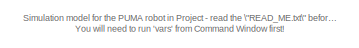
[diagram: root canvas - part 1/3, top right region]
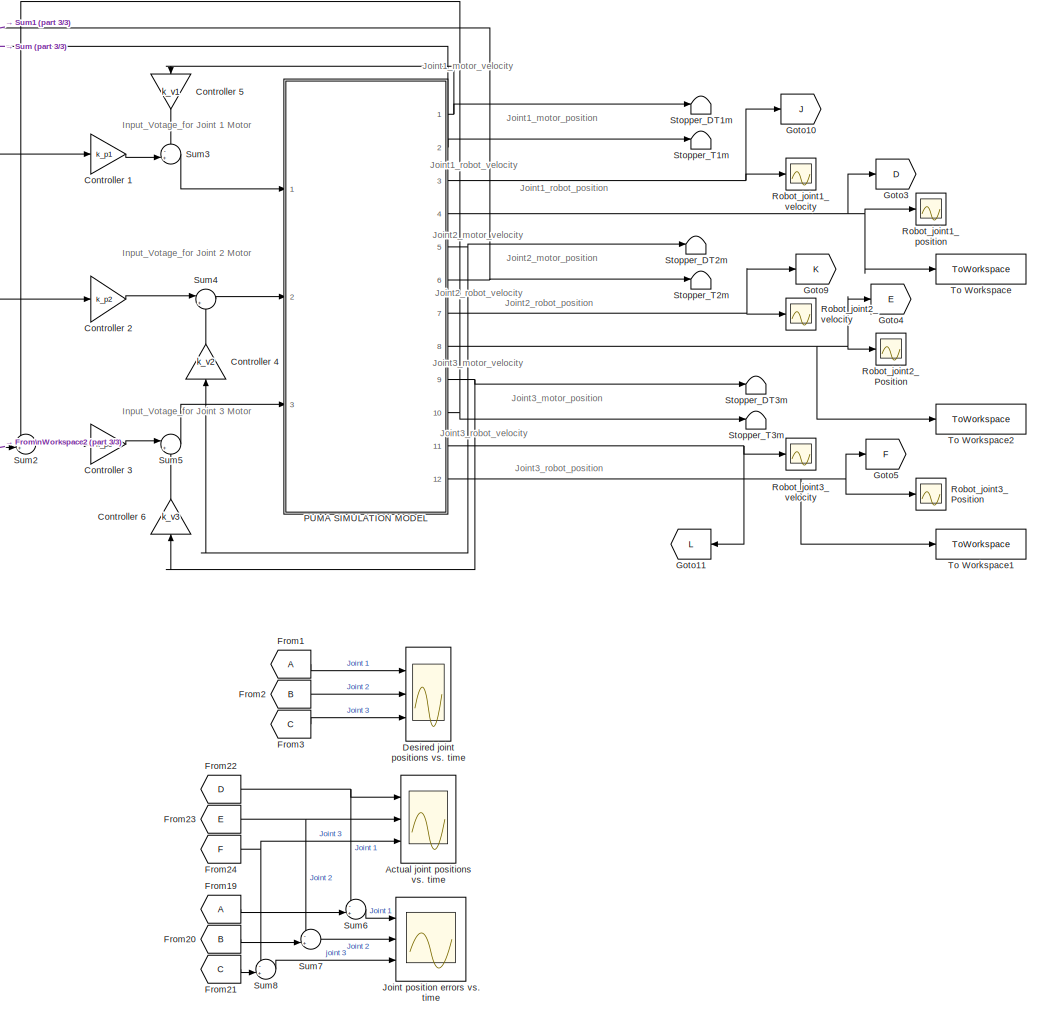
[diagram: root canvas - part 2/3, center side, full height]
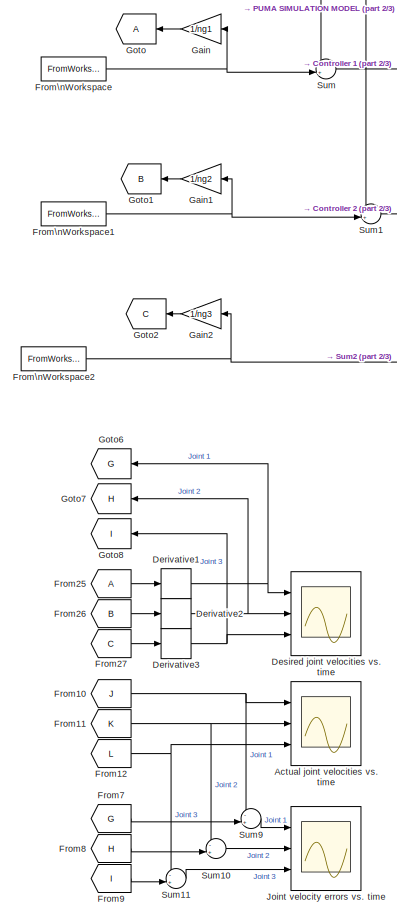
[diagram: root canvas - part 3/3, left side, full height]
MODEL my_PUMA
KIND model
CONFIG StopFcn = run('End_point_graph.m')
BLOCK [Scope] Actual joint positions vs. time 
  Floating = off
  NumInputPorts = 3
  Ports = [3]
  SID = 201
  ScopeSpecificationString = Simulink.scopes.TimeScopeBlockCfg('CurrentConfiguration', extmgr.ConfigurationSet(extmgr.Configuration('Core','General UI',true),extmgr.Configuration('Core','Source UI',true),extmgr.Configuration('Sources','WiredSimulink',true,'DataLoggingVariableName','ScopeData2','DataLoggingSaveFormat','StructureWithTime','DataLoggingDecimation','1','DataLoggingDecimateData',true),extmgr.Configuration('Visuals'...<+2080ch>
BLOCK [Scope] Actual joint velocities vs. time 
  Floating = off
  NumInputPorts = 3
  Ports = [3]
  SID = 249
  ScopeSpecificationString = Simulink.scopes.TimeScopeBlockCfg('CurrentConfiguration', extmgr.ConfigurationSet(extmgr.Configuration('Core','General UI',true,'FigureColor',[1 1 1]),extmgr.Configuration('Core','Source UI',true),extmgr.Configuration('Sources','WiredSimulink',true,'DataLoggingVariableName','ScopeData4','DataLoggingSaveFormat','StructureWithTime','DataLoggingDecimation','1'),extmgr.Configuration('Visuals','Time Do...<+2403ch>
BLOCK [Gain] Controller 1
  Gain = k_p1
  SID = 167
BLOCK [Gain] Controller 2
  Gain = k_p2
  SID = 169
BLOCK [Gain] Controller 3
  Gain = k_p3
  SID = 170
BLOCK [Gain] Controller 4
  Gain = k_v2
  NameLocation = left
  SID = 176
BLOCK [Gain] Controller 5
  Gain = k_v1
  NameLocation = left
  SID = 177
BLOCK [Gain] Controller 6
  Gain = k_v3
  NameLocation = left
  SID = 178
BLOCK [Derivative] Derivative1
  SID = 315
BLOCK [Derivative] Derivative2
  SID = 316
BLOCK [Derivative] Derivative3
  SID = 317
BLOCK [Scope] Desired joint positions vs. time
  Floating = off
  NumInputPorts = 3
  Ports = [3]
  SID = 200
  ScopeSpecificationString = Simulink.scopes.TimeScopeBlockCfg('CurrentConfiguration', extmgr.ConfigurationSet(extmgr.Configuration('Core','General UI',true),extmgr.Configuration('Core','Source UI',true),extmgr.Configuration('Sources','WiredSimulink',true,'DataLoggingVariableName','ScopeData1','DataLoggingSaveFormat','StructureWithTime','DataLoggingDecimation','1'),extmgr.Configuration('Visuals','Time Domain',true,'Serialized...<+2062ch>
BLOCK [Scope] Desired joint velocities vs. time 
  Floating = off
  NumInputPorts = 3
  Ports = [3]
  SID = 253
  ScopeSpecificationString = Simulink.scopes.TimeScopeBlockCfg('CurrentConfiguration', extmgr.ConfigurationSet(extmgr.Configuration('Core','General UI',true),extmgr.Configuration('Core','Source UI',true),extmgr.Configuration('Sources','WiredSimulink',true,'DataLoggingVariableName','ScopeData5','DataLoggingSaveFormat','StructureWithTime','DataLoggingLimitDataPoints',true,'DataLoggingDecimation','1','DataLoggingDecimateData',tr...<+2105ch>
BLOCK [From] From1
  SID = 227
BLOCK [From] From10
  GotoTag = J
  SID = 246
BLOCK [From] From11
  GotoTag = K
  SID = 247
BLOCK [From] From12
  GotoTag = L
  SID = 248
BLOCK [From] From19
  SID = 305
BLOCK [From] From2
  GotoTag = B
  SID = 228
BLOCK [From] From20
  GotoTag = B
  SID = 306
BLOCK [From] From21
  GotoTag = C
  SID = 307
BLOCK [From] From22
  GotoTag = D
  SID = 308
BLOCK [From] From23
  GotoTag = E
  SID = 309
BLOCK [From] From24
  GotoTag = F
  SID = 310
BLOCK [From] From25
  SID = 312
BLOCK [From] From26
  GotoTag = B
  SID = 313
BLOCK [From] From27
  GotoTag = C
  SID = 314
BLOCK [From] From3
  GotoTag = C
  SID = 229
BLOCK [From] From7
  GotoTag = G
  SID = 239
BLOCK [From] From8
  GotoTag = H
  SID = 240
BLOCK [From] From9
  GotoTag = I
  SID = 241
BLOCK [FromWorkspace] From\nWorkspace
  OutputAfterFinalValue = Holding final value
  SID = 194
  SampleTime = -1
  VariableName = Motor1_angles
BLOCK [FromWorkspace] From\nWorkspace1
  OutDataTypeStr = double
  OutputAfterFinalValue = Holding final value
  SID = 195
  SampleTime = -1
  VariableName = Motor2_angles
BLOCK [FromWorkspace] From\nWorkspace2
  OutputAfterFinalValue = Holding final value
  SID = 196
  SampleTime = -1
  VariableName = Motor3_angles
BLOCK [Gain] Gain
  Gain = 1/ng1
  NameLocation = top
  SID = 299
BLOCK [Gain] Gain1
  Gain = 1/ng2
  NameLocation = top
  SID = 300
BLOCK [Gain] Gain2
  Gain = 1/ng3
  NameLocation = top
  SID = 301
BLOCK [Goto] Goto
  SID = 224
BLOCK [Goto] Goto1
  GotoTag = B
  SID = 225
BLOCK [Goto] Goto10
  GotoTag = J
  NameLocation = top
  SID = 243
BLOCK [Goto] Goto11
  GotoTag = L
  SID = 244
BLOCK [Goto] Goto2
  GotoTag = C
  SID = 226
BLOCK [Goto] Goto3
  GotoTag = D
  NameLocation = top
  SID = 231
BLOCK [Goto] Goto4
  GotoTag = E
  NameLocation = top
  SID = 232
BLOCK [Goto] Goto5
  GotoTag = F
  NameLocation = top
  SID = 233
BLOCK [Goto] Goto6
  GotoTag = G
  SID = 236
BLOCK [Goto] Goto7
  GotoTag = H
  SID = 237
BLOCK [Goto] Goto8
  GotoTag = I
  SID = 238
BLOCK [Goto] Goto9
  GotoTag = K
  NameLocation = top
  SID = 242
BLOCK [Scope] Joint position errors vs. time
  Floating = off
  NumInputPorts = 3
  Ports = [3]
  SID = 206
  ScopeSpecificationString = Simulink.scopes.TimeScopeBlockCfg('CurrentConfiguration', extmgr.ConfigurationSet(extmgr.Configuration('Core','General UI',true,'FigureColor',[1 1 1]),extmgr.Configuration('Core','Source UI',true),extmgr.Configuration('Sources','WiredSimulink',true,'DataLoggingVariableName','ScopeData3','DataLoggingSaveFormat','StructureWithTime','DataLoggingDecimation','1'),extmgr.Configuration('Visuals','Time Do...<+2411ch>
BLOCK [Scope] Joint velocity errors vs. time 
  Floating = off
  NumInputPorts = 3
  Ports = [3]
  SID = 260
  ScopeSpecificationString = Simulink.scopes.TimeScopeBlockCfg('CurrentConfiguration', extmgr.ConfigurationSet(extmgr.Configuration('Core','General UI',true,'FigureColor',[1 1 1]),extmgr.Configuration('Core','Source UI',true),extmgr.Configuration('Sources','WiredSimulink',true,'DataLoggingVariableName','ScopeData6','DataLoggingSaveFormat','StructureWithTime','DataLoggingDecimation','1'),extmgr.Configuration('Visuals','Time Do...<+2445ch>
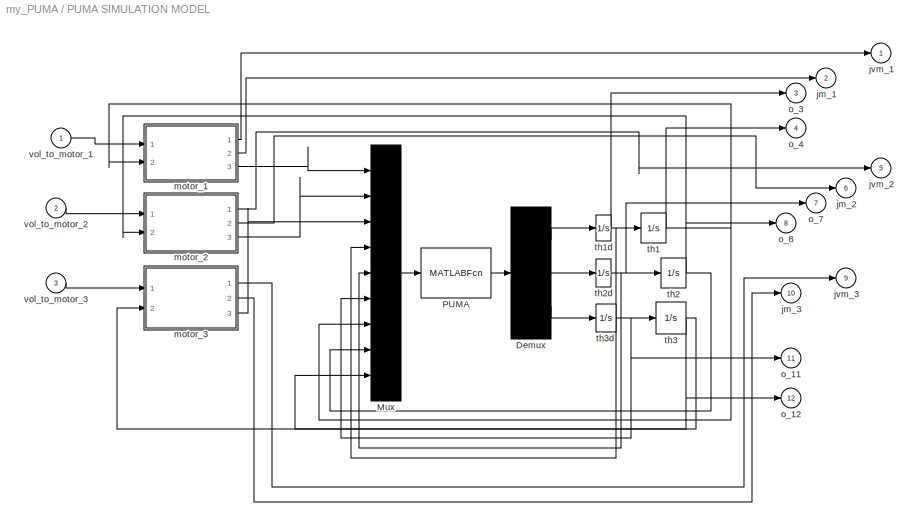
BLOCK [SubSystem] PUMA SIMULATION MODEL
  Ports = [3, 12]
  RequestExecContextInheritance = off
  SID = 1
BLOCK [Demux] PUMA SIMULATION MODEL/Demux
  DisplayOption = none
  Outputs = 3
  Ports = [1, 3]
  SID = 5
BLOCK [Mux] PUMA SIMULATION MODEL/Mux
  Inputs = 9
  Ports = [9, 1]
  SID = 6
BLOCK [MATLABFcn] PUMA SIMULATION MODEL/PUMA
  MATLABFcn = puma
  OutputDimensions = 3
  Ports = [1, 1]
  SID = 7
BLOCK [Outport] PUMA SIMULATION MODEL/jm_1
  InitialOutput = 0
  Port = 2
  SID = 75
  VectorParamsAs1DForOutWhenUnconnected = off
BLOCK [Outport] PUMA SIMULATION MODEL/jm_2
  InitialOutput = 0
  Port = 6
  SID = 79
  VectorParamsAs1DForOutWhenUnconnected = off
BLOCK [Outport] PUMA SIMULATION MODEL/jm_3
  InitialOutput = 0
  Port = 10
  SID = 83
  VectorParamsAs1DForOutWhenUnconnected = off
BLOCK [Outport] PUMA SIMULATION MODEL/jvm_1
  InitialOutput = 0
  SID = 74
  VectorParamsAs1DForOutWhenUnconnected = off
BLOCK [Outport] PUMA SIMULATION MODEL/jvm_2
  InitialOutput = 0
  Port = 5
  SID = 78
  VectorParamsAs1DForOutWhenUnconnected = off
BLOCK [Outport] PUMA SIMULATION MODEL/jvm_3
  InitialOutput = 0
  Port = 9
  SID = 82
  VectorParamsAs1DForOutWhenUnconnected = off
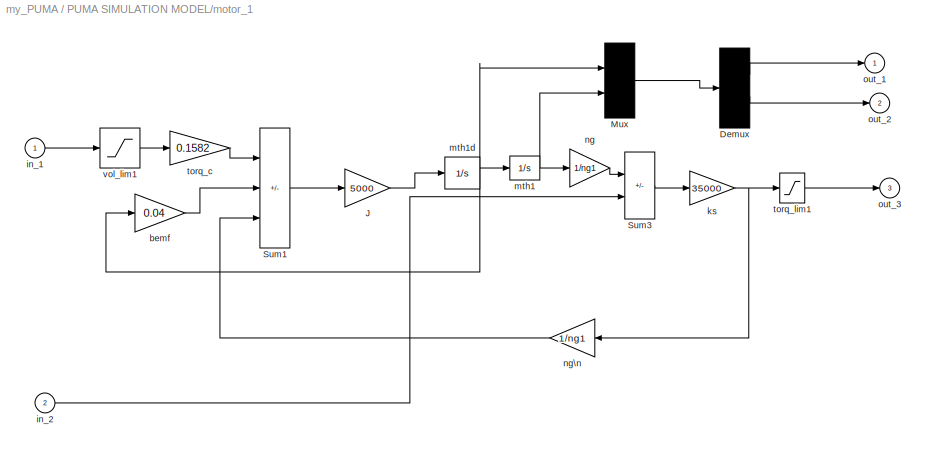
BLOCK [SubSystem] PUMA SIMULATION MODEL/motor_1
  Ports = [2, 3]
  RequestExecContextInheritance = off
  SID = 8
BLOCK [Demux] PUMA SIMULATION MODEL/motor_1/Demux
  DisplayOption = none
  Outputs = 2
  Ports = [1, 2]
  SID = 11
BLOCK [Gain] PUMA SIMULATION MODEL/motor_1/J
  Gain = 5000
  OutDataTypeStr = Inherit: Same as input
  ParamDataTypeStr = Inherit: Same as input
  SID = 12
  SaturateOnIntegerOverflow = on
BLOCK [Mux] PUMA SIMULATION MODEL/motor_1/Mux
  Inputs = 2
  Ports = [2, 1]
  SID = 13
BLOCK [Sum] PUMA SIMULATION MODEL/motor_1/Sum1
  IconShape = rectangular
  InputSameDT = on
  Inputs = +--
  OutDataTypeStr = Inherit: Same as first input
  Ports = [3, 1]
  SID = 14
  SaturateOnIntegerOverflow = on
BLOCK [Sum] PUMA SIMULATION MODEL/motor_1/Sum3
  IconShape = rectangular
  InputSameDT = on
  Inputs = +-
  OutDataTypeStr = Inherit: Same as first input
  Ports = [2, 1]
  SID = 15
  SaturateOnIntegerOverflow = on
BLOCK [Gain] PUMA SIMULATION MODEL/motor_1/bemf
  Gain = 0.04
  OutDataTypeStr = Inherit: Same as input
  ParamDataTypeStr = Inherit: Same as input
  SID = 16
  SaturateOnIntegerOverflow = on
BLOCK [Inport] PUMA SIMULATION MODEL/motor_1/in_1
  SID = 9
BLOCK [Inport] PUMA SIMULATION MODEL/motor_1/in_2
  Port = 2
  SID = 10
BLOCK [Gain] PUMA SIMULATION MODEL/motor_1/ks
  Gain = 35000
  OutDataTypeStr = Inherit: Same as input
  ParamDataTypeStr = Inherit: Same as input
  SID = 17
  SaturateOnIntegerOverflow = on
BLOCK [Integrator] PUMA SIMULATION MODEL/motor_1/mth1
  InitialCondition = ng1*thr10
  Ports = [1, 1]
  SID = 18
BLOCK [Integrator] PUMA SIMULATION MODEL/motor_1/mth1d
  Ports = [1, 1]
  SID = 19
BLOCK [Gain] PUMA SIMULATION MODEL/motor_1/ng
  Gain = 1/ng1
  OutDataTypeStr = Inherit: Same as input
  ParamDataTypeStr = Inherit: Same as input
  SID = 20
  SaturateOnIntegerOverflow = on
BLOCK [Gain] PUMA SIMULATION MODEL/motor_1/ng\n
  Gain = 1/ng1
  OutDataTypeStr = Inherit: Same as input
  ParamDataTypeStr = Inherit: Same as input
  SID = 21
  SaturateOnIntegerOverflow = on
BLOCK [Outport] PUMA SIMULATION MODEL/motor_1/out_1
  InitialOutput = 0
  SID = 25
  VectorParamsAs1DForOutWhenUnconnected = off
BLOCK [Outport] PUMA SIMULATION MODEL/motor_1/out_2
  InitialOutput = 0
  Port = 2
  SID = 26
  VectorParamsAs1DForOutWhenUnconnected = off
BLOCK [Outport] PUMA SIMULATION MODEL/motor_1/out_3
  InitialOutput = 0
  Port = 3
  SID = 27
  VectorParamsAs1DForOutWhenUnconnected = off
BLOCK [Gain] PUMA SIMULATION MODEL/motor_1/torq_c
  Gain = 0.1582
  OutDataTypeStr = Inherit: Same as input
  ParamDataTypeStr = Inherit: Same as input
  SID = 22
  SaturateOnIntegerOverflow = on
BLOCK [Saturate] PUMA SIMULATION MODEL/motor_1/torq_lim1
  LowerLimit = -1.2*ng1
  SID = 23
  UpperLimit = 1.2*ng1
BLOCK [Saturate] PUMA SIMULATION MODEL/motor_1/vol_lim1
  LowerLimit = -40
  SID = 24
  UpperLimit = 40
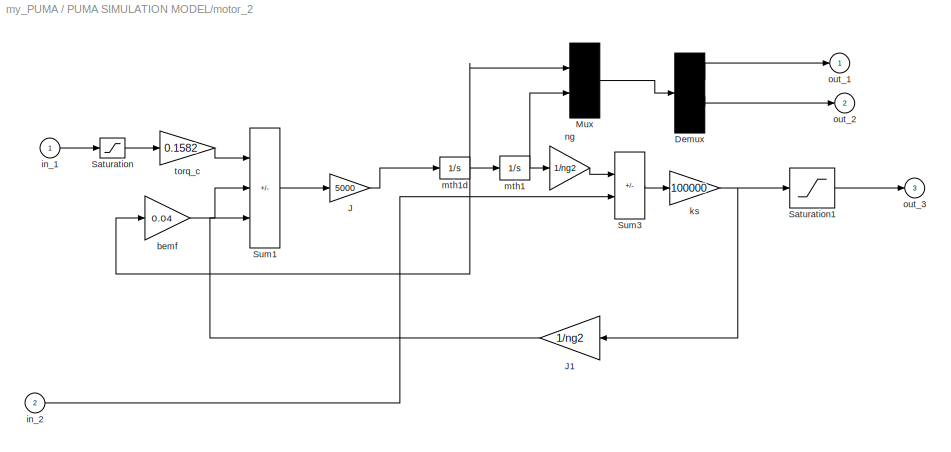
BLOCK [SubSystem] PUMA SIMULATION MODEL/motor_2
  Ports = [2, 3]
  RequestExecContextInheritance = off
  SID = 28
BLOCK [Demux] PUMA SIMULATION MODEL/motor_2/Demux
  DisplayOption = none
  Outputs = 2
  Ports = [1, 2]
  SID = 31
BLOCK [Gain] PUMA SIMULATION MODEL/motor_2/J
  Gain = 5000
  OutDataTypeStr = Inherit: Same as input
  ParamDataTypeStr = Inherit: Same as input
  SID = 32
  SaturateOnIntegerOverflow = on
BLOCK [Gain] PUMA SIMULATION MODEL/motor_2/J1
  Gain = 1/ng2
  OutDataTypeStr = Inherit: Same as input
  ParamDataTypeStr = Inherit: Same as input
  SID = 33
  SaturateOnIntegerOverflow = on
BLOCK [Mux] PUMA SIMULATION MODEL/motor_2/Mux
  Inputs = 2
  Ports = [2, 1]
  SID = 34
BLOCK [Saturate] PUMA SIMULATION MODEL/motor_2/Saturation
  LowerLimit = -40
  SID = 35
  UpperLimit = 40
BLOCK [Saturate] PUMA SIMULATION MODEL/motor_2/Saturation1
  LowerLimit = -ng2*1.2
  SID = 36
  UpperLimit = ng2*1.2
BLOCK [Sum] PUMA SIMULATION MODEL/motor_2/Sum1
  IconShape = rectangular
  InputSameDT = on
  Inputs = +--
  OutDataTypeStr = Inherit: Same as first input
  Ports = [3, 1]
  SID = 37
  SaturateOnIntegerOverflow = on
BLOCK [Sum] PUMA SIMULATION MODEL/motor_2/Sum3
  IconShape = rectangular
  InputSameDT = on
  Inputs = +-
  OutDataTypeStr = Inherit: Same as first input
  Ports = [2, 1]
  SID = 38
  SaturateOnIntegerOverflow = on
BLOCK [Gain] PUMA SIMULATION MODEL/motor_2/bemf
  Gain = 0.04
  OutDataTypeStr = Inherit: Same as input
  ParamDataTypeStr = Inherit: Same as input
  SID = 39
  SaturateOnIntegerOverflow = on
BLOCK [Inport] PUMA SIMULATION MODEL/motor_2/in_1
  SID = 29
BLOCK [Inport] PUMA SIMULATION MODEL/motor_2/in_2
  Port = 2
  SID = 30
BLOCK [Gain] PUMA SIMULATION MODEL/motor_2/ks
  Gain = 100000
  OutDataTypeStr = Inherit: Same as input
  ParamDataTypeStr = Inherit: Same as input
  SID = 40
  SaturateOnIntegerOverflow = on
BLOCK [Integrator] PUMA SIMULATION MODEL/motor_2/mth1
  InitialCondition = thr20*ng2
  Ports = [1, 1]
  SID = 41
BLOCK [Integrator] PUMA SIMULATION MODEL/motor_2/mth1d
  Ports = [1, 1]
  SID = 42
BLOCK [Gain] PUMA SIMULATION MODEL/motor_2/ng
  Gain = 1/ng2
  OutDataTypeStr = Inherit: Same as input
  ParamDataTypeStr = Inherit: Same as input
  SID = 43
  SaturateOnIntegerOverflow = on
BLOCK [Outport] PUMA SIMULATION MODEL/motor_2/out_1
  InitialOutput = 0
  SID = 45
  VectorParamsAs1DForOutWhenUnconnected = off
BLOCK [Outport] PUMA SIMULATION MODEL/motor_2/out_2
  InitialOutput = 0
  Port = 2
  SID = 46
  VectorParamsAs1DForOutWhenUnconnected = off
BLOCK [Outport] PUMA SIMULATION MODEL/motor_2/out_3
  InitialOutput = 0
  Port = 3
  SID = 47
  VectorParamsAs1DForOutWhenUnconnected = off
BLOCK [Gain] PUMA SIMULATION MODEL/motor_2/torq_c
  Gain = 0.1582
  OutDataTypeStr = Inherit: Same as input
  ParamDataTypeStr = Inherit: Same as input
  SID = 44
  SaturateOnIntegerOverflow = on
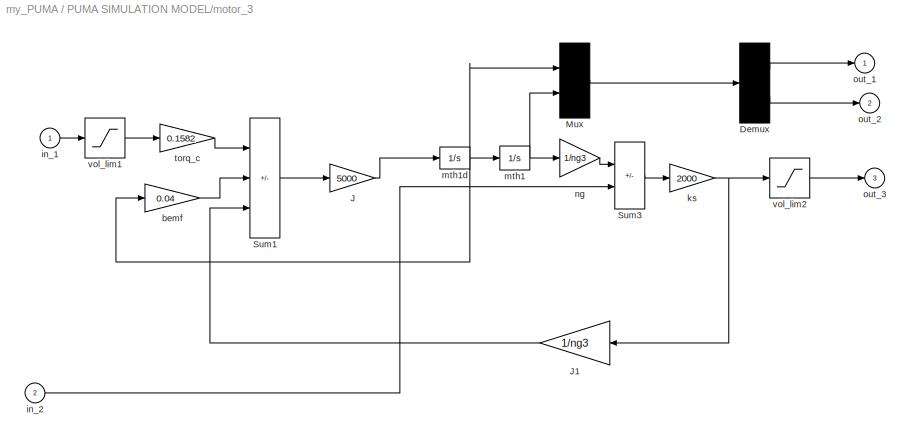
BLOCK [SubSystem] PUMA SIMULATION MODEL/motor_3
  Ports = [2, 3]
  RequestExecContextInheritance = off
  SID = 48
BLOCK [Demux] PUMA SIMULATION MODEL/motor_3/Demux
  DisplayOption = none
  Outputs = 2
  Ports = [1, 2]
  SID = 51
BLOCK [Gain] PUMA SIMULATION MODEL/motor_3/J
  Gain = 5000
  OutDataTypeStr = Inherit: Same as input
  ParamDataTypeStr = Inherit: Same as input
  SID = 52
  SaturateOnIntegerOverflow = on
BLOCK [Gain] PUMA SIMULATION MODEL/motor_3/J1
  Gain = 1/ng3
  OutDataTypeStr = Inherit: Same as input
  ParamDataTypeStr = Inherit: Same as input
  SID = 53
  SaturateOnIntegerOverflow = on
BLOCK [Mux] PUMA SIMULATION MODEL/motor_3/Mux
  Inputs = 2
  Ports = [2, 1]
  SID = 54
BLOCK [Sum] PUMA SIMULATION MODEL/motor_3/Sum1
  IconShape = rectangular
  InputSameDT = on
  Inputs = +--
  OutDataTypeStr = Inherit: Same as first input
  Ports = [3, 1]
  SID = 55
  SaturateOnIntegerOverflow = on
BLOCK [Sum] PUMA SIMULATION MODEL/motor_3/Sum3
  IconShape = rectangular
  InputSameDT = on
  Inputs = +-
  OutDataTypeStr = Inherit: Same as first input
  Ports = [2, 1]
  SID = 56
  SaturateOnIntegerOverflow = on
BLOCK [Gain] PUMA SIMULATION MODEL/motor_3/bemf
  Gain = 0.04
  OutDataTypeStr = Inherit: Same as input
  ParamDataTypeStr = Inherit: Same as input
  SID = 57
  SaturateOnIntegerOverflow = on
BLOCK [Inport] PUMA SIMULATION MODEL/motor_3/in_1
  SID = 49
BLOCK [Inport] PUMA SIMULATION MODEL/motor_3/in_2
  Port = 2
  SID = 50
BLOCK [Gain] PUMA SIMULATION MODEL/motor_3/ks
  Gain = 2000
  OutDataTypeStr = Inherit: Same as input
  ParamDataTypeStr = Inherit: Same as input
  SID = 58
  SaturateOnIntegerOverflow = on
BLOCK [Integrator] PUMA SIMULATION MODEL/motor_3/mth1
  InitialCondition = thr30*ng3
  Ports = [1, 1]
  SID = 59
BLOCK [Integrator] PUMA SIMULATION MODEL/motor_3/mth1d
  Ports = [1, 1]
  SID = 60
BLOCK [Gain] PUMA SIMULATION MODEL/motor_3/ng
  Gain = 1/ng3
  OutDataTypeStr = Inherit: Same as input
  ParamDataTypeStr = Inherit: Same as input
  SID = 61
  SaturateOnIntegerOverflow = on
BLOCK [Outport] PUMA SIMULATION MODEL/motor_3/out_1
  InitialOutput = 0
  SID = 65
  VectorParamsAs1DForOutWhenUnconnected = off
BLOCK [Outport] PUMA SIMULATION MODEL/motor_3/out_2
  InitialOutput = 0
  Port = 2
  SID = 66
  VectorParamsAs1DForOutWhenUnconnected = off
BLOCK [Outport] PUMA SIMULATION MODEL/motor_3/out_3
  InitialOutput = 0
  Port = 3
  SID = 67
  VectorParamsAs1DForOutWhenUnconnected = off
BLOCK [Gain] PUMA SIMULATION MODEL/motor_3/torq_c
  Gain = 0.1582
  OutDataTypeStr = Inherit: Same as input
  ParamDataTypeStr = Inherit: Same as input
  SID = 62
  SaturateOnIntegerOverflow = on
BLOCK [Saturate] PUMA SIMULATION MODEL/motor_3/vol_lim1
  LowerLimit = -40
  SID = 63
  UpperLimit = 40
BLOCK [Saturate] PUMA SIMULATION MODEL/motor_3/vol_lim2
  LowerLimit = -1.2*ng3
  SID = 64
  UpperLimit = 1.2*ng3
BLOCK [Outport] PUMA SIMULATION MODEL/o_11
  InitialOutput = 0
  Port = 11
  SID = 84
  VectorParamsAs1DForOutWhenUnconnected = off
BLOCK [Outport] PUMA SIMULATION MODEL/o_12
  InitialOutput = 0
  Port = 12
  SID = 85
  VectorParamsAs1DForOutWhenUnconnected = off
BLOCK [Outport] PUMA SIMULATION MODEL/o_3
  InitialOutput = 0
  Port = 3
  SID = 76
  VectorParamsAs1DForOutWhenUnconnected = off
BLOCK [Outport] PUMA SIMULATION MODEL/o_4
  InitialOutput = 0
  Port = 4
  SID = 77
  VectorParamsAs1DForOutWhenUnconnected = off
BLOCK [Outport] PUMA SIMULATION MODEL/o_7
  InitialOutput = 0
  Port = 7
  SID = 80
  VectorParamsAs1DForOutWhenUnconnected = off
BLOCK [Outport] PUMA SIMULATION MODEL/o_8
  InitialOutput = 0
  Port = 8
  SID = 81
  VectorParamsAs1DForOutWhenUnconnected = off
BLOCK [Integrator] PUMA SIMULATION MODEL/th1
  InitialCondition = thr10
  Ports = [1, 1]
  SID = 68
BLOCK [Integrator] PUMA SIMULATION MODEL/th1d
  Ports = [1, 1]
  SID = 69
BLOCK [Integrator] PUMA SIMULATION MODEL/th2
  InitialCondition = thr20
  Ports = [1, 1]
  SID = 70
BLOCK [Integrator] PUMA SIMULATION MODEL/th2d
  Ports = [1, 1]
  SID = 71
BLOCK [Integrator] PUMA SIMULATION MODEL/th3
  InitialCondition = thr30
  Ports = [1, 1]
  SID = 72
BLOCK [Integrator] PUMA SIMULATION MODEL/th3d
  Ports = [1, 1]
  SID = 73
BLOCK [Inport] PUMA SIMULATION MODEL/vol_to_motor_1
  SID = 2
BLOCK [Inport] PUMA SIMULATION MODEL/vol_to_motor_2
  Port = 2
  SID = 3
BLOCK [Inport] PUMA SIMULATION MODEL/vol_to_motor_3
  Port = 3
  SID = 4
BLOCK [Scope] Robot_joint1_position
  Floating = off
  NumInputPorts = 1
  Ports = [1]
  SID = 147
  ScopeSpecificationString = Simulink.scopes.TimeScopeBlockCfg('CurrentConfiguration', extmgr.ConfigurationSet(extmgr.Configuration('Core','General UI',true),extmgr.Configuration('Core','Source UI',true),extmgr.Configuration('Sources','WiredSimulink',true,'DataLoggingVariableName','ScopeData1','DataLoggingSaveFormat','StructureWithTime','DataLoggingLimitDataPoints',true,'DataLoggingDecimation','1','DataLoggingDecimateData',tr...<+2017ch>
BLOCK [Scope] Robot_joint1_velocity
  Floating = off
  NumInputPorts = 1
  Ports = [1]
  SID = 146
  ScopeSpecificationString = Simulink.scopes.TimeScopeBlockCfg('CurrentConfiguration', extmgr.ConfigurationSet(extmgr.Configuration('Core','General UI',true),extmgr.Configuration('Core','Source UI',true),extmgr.Configuration('Sources','WiredSimulink',true,'DataLoggingSaveFormat','StructureWithTime','DataLoggingLimitDataPoints',true,'DataLoggingDecimation','1','DataLoggingDecimateData',true),extmgr.Configuration('Visuals','Tim...<+1724ch>
BLOCK [Scope] Robot_joint2_Position
  Floating = off
  NumInputPorts = 1
  Ports = [1]
  SID = 165
  ScopeSpecificationString = Simulink.scopes.TimeScopeBlockCfg('CurrentConfiguration', extmgr.ConfigurationSet(extmgr.Configuration('Core','General UI',true),extmgr.Configuration('Core','Source UI',true),extmgr.Configuration('Sources','WiredSimulink',true,'DataLoggingVariableName','ScopeData6','DataLoggingSaveFormat','StructureWithTime','DataLoggingLimitDataPoints',true,'DataLoggingDecimation','1','DataLoggingDecimateData',tr...<+2049ch>
BLOCK [Scope] Robot_joint2_velocity
  Floating = off
  NumInputPorts = 1
  Ports = [1]
  SID = 164
  ScopeSpecificationString = Simulink.scopes.TimeScopeBlockCfg('CurrentConfiguration', extmgr.ConfigurationSet(extmgr.Configuration('Core','General UI',true),extmgr.Configuration('Core','Source UI',true),extmgr.Configuration('Sources','WiredSimulink',true,'DataLoggingVariableName','ScopeData3','DataLoggingSaveFormat','StructureWithTime','DataLoggingLimitDataPoints',true,'DataLoggingDecimation','1','DataLoggingDecimateData',tr...<+1765ch>
BLOCK [Scope] Robot_joint3_Position
  Floating = off
  NumInputPorts = 1
  Ports = [1]
  SID = 150
  ScopeSpecificationString = Simulink.scopes.TimeScopeBlockCfg('CurrentConfiguration', extmgr.ConfigurationSet(extmgr.Configuration('Core','General UI',true),extmgr.Configuration('Core','Source UI',true),extmgr.Configuration('Sources','WiredSimulink',true,'DataLoggingVariableName','ScopeData5','DataLoggingSaveFormat','StructureWithTime','DataLoggingDecimation','1'),extmgr.Configuration('Visuals','Time Domain',true,'Serialized...<+1928ch>
BLOCK [Scope] Robot_joint3_velocity
  Floating = off
  NumInputPorts = 1
  Ports = [1]
  SID = 149
  ScopeSpecificationString = Simulink.scopes.TimeScopeBlockCfg('CurrentConfiguration', extmgr.ConfigurationSet(extmgr.Configuration('Core','General UI',true),extmgr.Configuration('Core','Source UI',true),extmgr.Configuration('Sources','WiredSimulink',true,'DataLoggingVariableName','ScopeData4','DataLoggingSaveFormat','StructureWithTime','DataLoggingLimitDataPoints',true,'DataLoggingDecimation','1','DataLoggingDecimateData',tr...<+1766ch>
BLOCK [Terminator] Stopper_DT1m
  SID = 123
BLOCK [Terminator] Stopper_DT2m
  SID = 125
BLOCK [Terminator] Stopper_DT3m
  SID = 127
BLOCK [Terminator] Stopper_T1m
  SID = 124
BLOCK [Terminator] Stopper_T2m
  SID = 145
BLOCK [Terminator] Stopper_T3m
  SID = 128
BLOCK [Sum] Sum
  Inputs = -+|
  Ports = [2, 1]
  SID = 166
BLOCK [Sum] Sum1
  Inputs = -+|
  Ports = [2, 1]
  SID = 168
BLOCK [Sum] Sum10
  Inputs = -+|
  Ports = [2, 1]
  SID = 319
BLOCK [Sum] Sum11
  Inputs = -+|
  Ports = [2, 1]
  SID = 320
BLOCK [Sum] Sum2
  Inputs = -+|
  Ports = [2, 1]
  SID = 171
BLOCK [Sum] Sum3
  Inputs = -+|
  Ports = [2, 1]
  SID = 173
BLOCK [Sum] Sum4
  Inputs = |+-
  Ports = [2, 1]
  SID = 174
BLOCK [Sum] Sum5
  Inputs = |+-
  Ports = [2, 1]
  SID = 175
BLOCK [Sum] Sum6
  Inputs = -+|
  Ports = [2, 1]
  SID = 302
BLOCK [Sum] Sum7
  Inputs = -+|
  Ports = [2, 1]
  SID = 303
BLOCK [Sum] Sum8
  Inputs = -+|
  Ports = [2, 1]
  SID = 304
BLOCK [Sum] Sum9
  Inputs = -+|
  Ports = [2, 1]
  SID = 318
BLOCK [ToWorkspace] To Workspace
  FixptAsFi = on
  MaxDataPoints = inf
  Ports = [1]
  SID = 292
  SampleTime = -1
  VariableName = ang1
BLOCK [ToWorkspace] To Workspace1
  FixptAsFi = on
  MaxDataPoints = inf
  Ports = [1]
  SID = 295
  SampleTime = -1
  VariableName = ang3
BLOCK [ToWorkspace] To Workspace2
  FixptAsFi = on
  MaxDataPoints = inf
  Ports = [1]
  SID = 296
  SampleTime = -1
  VariableName = ang2
ANNOTATION (root): Input_Votage_for Joint 1 Motor
ANNOTATION (root): Input_Votage_for Joint 2 Motor
ANNOTATION (root): Input_Votage_for Joint 3 Motor
ANNOTATION (root): Joint1_motor_position
ANNOTATION (root): Joint1_motor_velocity
ANNOTATION (root): Joint1_robot_position
ANNOTATION (root): Joint1_robot_velocity
ANNOTATION (root): Joint2_motor_position
ANNOTATION (root): Joint2_motor_velocity
ANNOTATION (root): Joint2_robot_position
ANNOTATION (root): Joint2_robot_velocity
ANNOTATION (root): Joint3_motor_position
ANNOTATION (root): Joint3_motor_velocity
ANNOTATION (root): Joint3_robot_position
ANNOTATION (root): Joint3_robot_velocity
ANNOTATION (root): Simulation model for the PUMA robot in Project - read the \"READ_ME.txt\" before running this simulation\nYou will need to run 'vars' from Command Window first!
LINE Controller 1:1 -> Sum3:2
LINE Controller 2:1 -> Sum4:1
LINE Controller 3:1 -> Sum5:1
LINE Controller 4:1 -> Sum4:2
LINE Controller 5:1 -> Sum3:1
LINE Controller 6:1 -> Sum5:2
NET Derivative1:1 -> Desired joint velocities vs. time :1, Goto6:1
NET Derivative2:1 -> Desired joint velocities vs. time :2, Goto7:1
NET Derivative3:1 -> Desired joint velocities vs. time :3, Goto8:1
NET From10:1 -> Actual joint velocities vs. time :1, Sum9:1
NET From11:1 -> Actual joint velocities vs. time :2, Sum10:1
NET From12:1 -> Actual joint velocities vs. time :3, Sum11:1
LINE From19:1 -> Sum6:2
LINE From1:1 -> Desired joint positions vs. time:1
LINE From20:1 -> Sum7:2
LINE From21:1 -> Sum8:2
NET From22:1 -> Actual joint positions vs. time :1, Sum6:1
NET From23:1 -> Actual joint positions vs. time :2, Sum7:1
NET From24:1 -> Actual joint positions vs. time :3, Sum8:1
LINE From25:1 -> Derivative1:1
LINE From26:1 -> Derivative2:1
LINE From27:1 -> Derivative3:1
LINE From2:1 -> Desired joint positions vs. time:2
LINE From3:1 -> Desired joint positions vs. time:3
LINE From7:1 -> Sum9:2
LINE From8:1 -> Sum10:2
LINE From9:1 -> Sum11:2
NET From\nWorkspace1:1 -> Gain1:1, Sum1:2
NET From\nWorkspace2:1 -> Gain2:1, Sum2:2
NET From\nWorkspace:1 -> Gain:1, Sum:2
LINE Gain1:1 -> Goto1:1
LINE Gain2:1 -> Goto2:1
LINE Gain:1 -> Goto:1
LINE PUMA SIMULATION MODEL/Demux:1 -> PUMA SIMULATION MODEL/th1d:1
LINE PUMA SIMULATION MODEL/Demux:2 -> PUMA SIMULATION MODEL/th2d:1
LINE PUMA SIMULATION MODEL/Demux:3 -> PUMA SIMULATION MODEL/th3d:1
LINE PUMA SIMULATION MODEL/Mux:1 -> PUMA SIMULATION MODEL/PUMA:1
LINE PUMA SIMULATION MODEL/PUMA:1 -> PUMA SIMULATION MODEL/Demux:1
LINE PUMA SIMULATION MODEL/motor_1/Demux:1 -> PUMA SIMULATION MODEL/motor_1/out_1:1
LINE PUMA SIMULATION MODEL/motor_1/Demux:2 -> PUMA SIMULATION MODEL/motor_1/out_2:1
LINE PUMA SIMULATION MODEL/motor_1/J:1 -> PUMA SIMULATION MODEL/motor_1/mth1d:1
LINE PUMA SIMULATION MODEL/motor_1/Mux:1 -> PUMA SIMULATION MODEL/motor_1/Demux:1
LINE PUMA SIMULATION MODEL/motor_1/Sum1:1 -> PUMA SIMULATION MODEL/motor_1/J:1
LINE PUMA SIMULATION MODEL/motor_1/Sum3:1 -> PUMA SIMULATION MODEL/motor_1/ks:1
LINE PUMA SIMULATION MODEL/motor_1/bemf:1 -> PUMA SIMULATION MODEL/motor_1/Sum1:2
LINE PUMA SIMULATION MODEL/motor_1/in_1:1 -> PUMA SIMULATION MODEL/motor_1/vol_lim1:1
LINE PUMA SIMULATION MODEL/motor_1/in_2:1 -> PUMA SIMULATION MODEL/motor_1/Sum3:2
NET PUMA SIMULATION MODEL/motor_1/ks:1 -> PUMA SIMULATION MODEL/motor_1/ng\n:1, PUMA SIMULATION MODEL/motor_1/torq_lim1:1
NET PUMA SIMULATION MODEL/motor_1/mth1:1 -> PUMA SIMULATION MODEL/motor_1/Mux:2, PUMA SIMULATION MODEL/motor_1/ng:1
NET PUMA SIMULATION MODEL/motor_1/mth1d:1 -> PUMA SIMULATION MODEL/motor_1/Mux:1, PUMA SIMULATION MODEL/motor_1/bemf:1, PUMA SIMULATION MODEL/motor_1/mth1:1
LINE PUMA SIMULATION MODEL/motor_1/ng:1 -> PUMA SIMULATION MODEL/motor_1/Sum3:1
LINE PUMA SIMULATION MODEL/motor_1/ng\n:1 -> PUMA SIMULATION MODEL/motor_1/Sum1:3
LINE PUMA SIMULATION MODEL/motor_1/torq_c:1 -> PUMA SIMULATION MODEL/motor_1/Sum1:1
LINE PUMA SIMULATION MODEL/motor_1/torq_lim1:1 -> PUMA SIMULATION MODEL/motor_1/out_3:1
LINE PUMA SIMULATION MODEL/motor_1/vol_lim1:1 -> PUMA SIMULATION MODEL/motor_1/torq_c:1
LINE PUMA SIMULATION MODEL/motor_1:1 -> PUMA SIMULATION MODEL/jvm_1:1
LINE PUMA SIMULATION MODEL/motor_1:2 -> PUMA SIMULATION MODEL/jm_1:1
LINE PUMA SIMULATION MODEL/motor_1:3 -> PUMA SIMULATION MODEL/Mux:1
LINE PUMA SIMULATION MODEL/motor_2/Demux:1 -> PUMA SIMULATION MODEL/motor_2/out_1:1
LINE PUMA SIMULATION MODEL/motor_2/Demux:2 -> PUMA SIMULATION MODEL/motor_2/out_2:1
LINE PUMA SIMULATION MODEL/motor_2/J1:1 -> PUMA SIMULATION MODEL/motor_2/Sum1:3
LINE PUMA SIMULATION MODEL/motor_2/J:1 -> PUMA SIMULATION MODEL/motor_2/mth1d:1
LINE PUMA SIMULATION MODEL/motor_2/Mux:1 -> PUMA SIMULATION MODEL/motor_2/Demux:1
LINE PUMA SIMULATION MODEL/motor_2/Saturation1:1 -> PUMA SIMULATION MODEL/motor_2/out_3:1
LINE PUMA SIMULATION MODEL/motor_2/Saturation:1 -> PUMA SIMULATION MODEL/motor_2/torq_c:1
LINE PUMA SIMULATION MODEL/motor_2/Sum1:1 -> PUMA SIMULATION MODEL/motor_2/J:1
LINE PUMA SIMULATION MODEL/motor_2/Sum3:1 -> PUMA SIMULATION MODEL/motor_2/ks:1
LINE PUMA SIMULATION MODEL/motor_2/bemf:1 -> PUMA SIMULATION MODEL/motor_2/Sum1:2
LINE PUMA SIMULATION MODEL/motor_2/in_1:1 -> PUMA SIMULATION MODEL/motor_2/Saturation:1
LINE PUMA SIMULATION MODEL/motor_2/in_2:1 -> PUMA SIMULATION MODEL/motor_2/Sum3:2
NET PUMA SIMULATION MODEL/motor_2/ks:1 -> PUMA SIMULATION MODEL/motor_2/J1:1, PUMA SIMULATION MODEL/motor_2/Saturation1:1
NET PUMA SIMULATION MODEL/motor_2/mth1:1 -> PUMA SIMULATION MODEL/motor_2/Mux:2, PUMA SIMULATION MODEL/motor_2/ng:1
NET PUMA SIMULATION MODEL/motor_2/mth1d:1 -> PUMA SIMULATION MODEL/motor_2/Mux:1, PUMA SIMULATION MODEL/motor_2/bemf:1, PUMA SIMULATION MODEL/motor_2/mth1:1
LINE PUMA SIMULATION MODEL/motor_2/ng:1 -> PUMA SIMULATION MODEL/motor_2/Sum3:1
LINE PUMA SIMULATION MODEL/motor_2/torq_c:1 -> PUMA SIMULATION MODEL/motor_2/Sum1:1
LINE PUMA SIMULATION MODEL/motor_2:1 -> PUMA SIMULATION MODEL/jvm_2:1
LINE PUMA SIMULATION MODEL/motor_2:2 -> PUMA SIMULATION MODEL/jm_2:1
LINE PUMA SIMULATION MODEL/motor_2:3 -> PUMA SIMULATION MODEL/Mux:2
LINE PUMA SIMULATION MODEL/motor_3/Demux:1 -> PUMA SIMULATION MODEL/motor_3/out_1:1
LINE PUMA SIMULATION MODEL/motor_3/Demux:2 -> PUMA SIMULATION MODEL/motor_3/out_2:1
LINE PUMA SIMULATION MODEL/motor_3/J1:1 -> PUMA SIMULATION MODEL/motor_3/Sum1:3
LINE PUMA SIMULATION MODEL/motor_3/J:1 -> PUMA SIMULATION MODEL/motor_3/mth1d:1
LINE PUMA SIMULATION MODEL/motor_3/Mux:1 -> PUMA SIMULATION MODEL/motor_3/Demux:1
LINE PUMA SIMULATION MODEL/motor_3/Sum1:1 -> PUMA SIMULATION MODEL/motor_3/J:1
LINE PUMA SIMULATION MODEL/motor_3/Sum3:1 -> PUMA SIMULATION MODEL/motor_3/ks:1
LINE PUMA SIMULATION MODEL/motor_3/bemf:1 -> PUMA SIMULATION MODEL/motor_3/Sum1:2
LINE PUMA SIMULATION MODEL/motor_3/in_1:1 -> PUMA SIMULATION MODEL/motor_3/vol_lim1:1
LINE PUMA SIMULATION MODEL/motor_3/in_2:1 -> PUMA SIMULATION MODEL/motor_3/Sum3:2
NET PUMA SIMULATION MODEL/motor_3/ks:1 -> PUMA SIMULATION MODEL/motor_3/J1:1, PUMA SIMULATION MODEL/motor_3/vol_lim2:1
NET PUMA SIMULATION MODEL/motor_3/mth1:1 -> PUMA SIMULATION MODEL/motor_3/Mux:2, PUMA SIMULATION MODEL/motor_3/ng:1
NET PUMA SIMULATION MODEL/motor_3/mth1d:1 -> PUMA SIMULATION MODEL/motor_3/Mux:1, PUMA SIMULATION MODEL/motor_3/bemf:1, PUMA SIMULATION MODEL/motor_3/mth1:1
LINE PUMA SIMULATION MODEL/motor_3/ng:1 -> PUMA SIMULATION MODEL/motor_3/Sum3:1
LINE PUMA SIMULATION MODEL/motor_3/torq_c:1 -> PUMA SIMULATION MODEL/motor_3/Sum1:1
LINE PUMA SIMULATION MODEL/motor_3/vol_lim1:1 -> PUMA SIMULATION MODEL/motor_3/torq_c:1
LINE PUMA SIMULATION MODEL/motor_3/vol_lim2:1 -> PUMA SIMULATION MODEL/motor_3/out_3:1
LINE PUMA SIMULATION MODEL/motor_3:1 -> PUMA SIMULATION MODEL/jvm_3:1
LINE PUMA SIMULATION MODEL/motor_3:2 -> PUMA SIMULATION MODEL/jm_3:1
LINE PUMA SIMULATION MODEL/motor_3:3 -> PUMA SIMULATION MODEL/Mux:3
NET PUMA SIMULATION MODEL/th1:1 -> PUMA SIMULATION MODEL/Mux:7, PUMA SIMULATION MODEL/motor_1:2, PUMA SIMULATION MODEL/o_4:1
NET PUMA SIMULATION MODEL/th1d:1 -> PUMA SIMULATION MODEL/Mux:4, PUMA SIMULATION MODEL/o_3:1, PUMA SIMULATION MODEL/th1:1
NET PUMA SIMULATION MODEL/th2:1 -> PUMA SIMULATION MODEL/Mux:8, PUMA SIMULATION MODEL/motor_2:2, PUMA SIMULATION MODEL/o_8:1
NET PUMA SIMULATION MODEL/th2d:1 -> PUMA SIMULATION MODEL/Mux:5, PUMA SIMULATION MODEL/o_7:1, PUMA SIMULATION MODEL/th2:1
NET PUMA SIMULATION MODEL/th3:1 -> PUMA SIMULATION MODEL/Mux:9, PUMA SIMULATION MODEL/motor_3:2, PUMA SIMULATION MODEL/o_12:1
NET PUMA SIMULATION MODEL/th3d:1 -> PUMA SIMULATION MODEL/Mux:6, PUMA SIMULATION MODEL/o_11:1, PUMA SIMULATION MODEL/th3:1
LINE PUMA SIMULATION MODEL/vol_to_motor_1:1 -> PUMA SIMULATION MODEL/motor_1:1
LINE PUMA SIMULATION MODEL/vol_to_motor_2:1 -> PUMA SIMULATION MODEL/motor_2:1
LINE PUMA SIMULATION MODEL/vol_to_motor_3:1 -> PUMA SIMULATION MODEL/motor_3:1
NET PUMA SIMULATION MODEL:1 -> Controller 5:1, Stopper_DT1m:1
NET PUMA SIMULATION MODEL:10 -> Stopper_T3m:1, Sum2:1
NET PUMA SIMULATION MODEL:11 -> Goto11:1, Robot_joint3_velocity:1
NET PUMA SIMULATION MODEL:12 -> Goto5:1, Robot_joint3_Position:1, To Workspace1:1
NET PUMA SIMULATION MODEL:2 -> Stopper_T1m:1, Sum:1
NET PUMA SIMULATION MODEL:3 -> Goto10:1, Robot_joint1_velocity:1
NET PUMA SIMULATION MODEL:4 -> Goto3:1, Robot_joint1_position:1, To Workspace:1
NET PUMA SIMULATION MODEL:5 -> Controller 4:1, Stopper_DT2m:1
NET PUMA SIMULATION MODEL:6 -> Stopper_T2m:1, Sum1:1
NET PUMA SIMULATION MODEL:7 -> Goto9:1, Robot_joint2_velocity:1
NET PUMA SIMULATION MODEL:8 -> Goto4:1, Robot_joint2_Position:1, To Workspace2:1
NET PUMA SIMULATION MODEL:9 -> Controller 6:1, Stopper_DT3m:1
LINE Sum10:1 -> Joint velocity errors vs. time :2
LINE Sum11:1 -> Joint velocity errors vs. time :3
LINE Sum1:1 -> Controller 2:1
LINE Sum2:1 -> Controller 3:1
LINE Sum3:1 -> PUMA SIMULATION MODEL:1
LINE Sum4:1 -> PUMA SIMULATION MODEL:2
LINE Sum5:1 -> PUMA SIMULATION MODEL:3
LINE Sum6:1 -> Joint position errors vs. time:1
LINE Sum7:1 -> Joint position errors vs. time:2
LINE Sum8:1 -> Joint position errors vs. time:3
LINE Sum9:1 -> Joint velocity errors vs. time :1
LINE Sum:1 -> Controller 1:1
note: NET lines group one-source signal fan-out (src -> all destinations, sorted); 1:1 wires keep LINE
